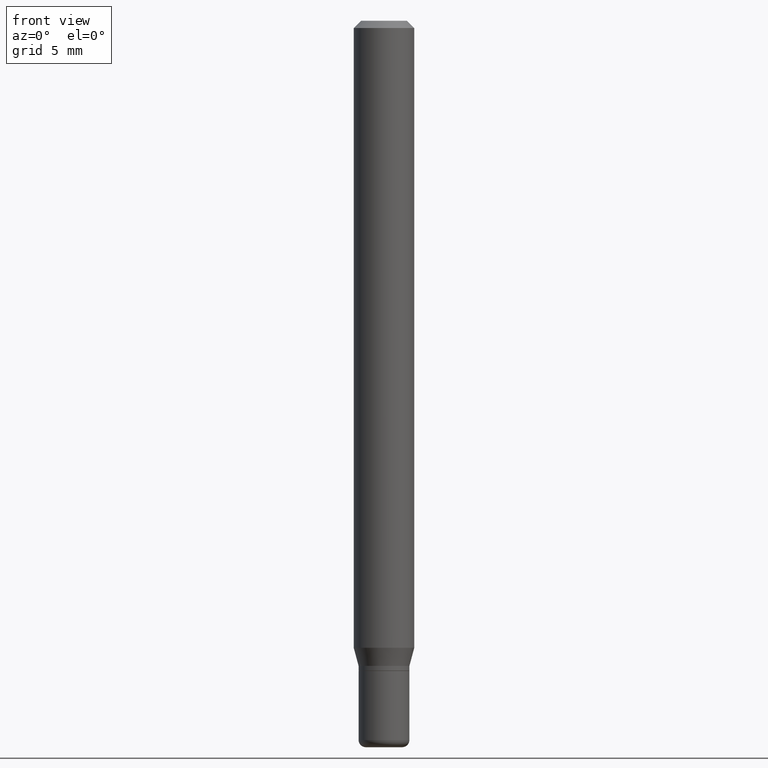
[diagram: clean part render]
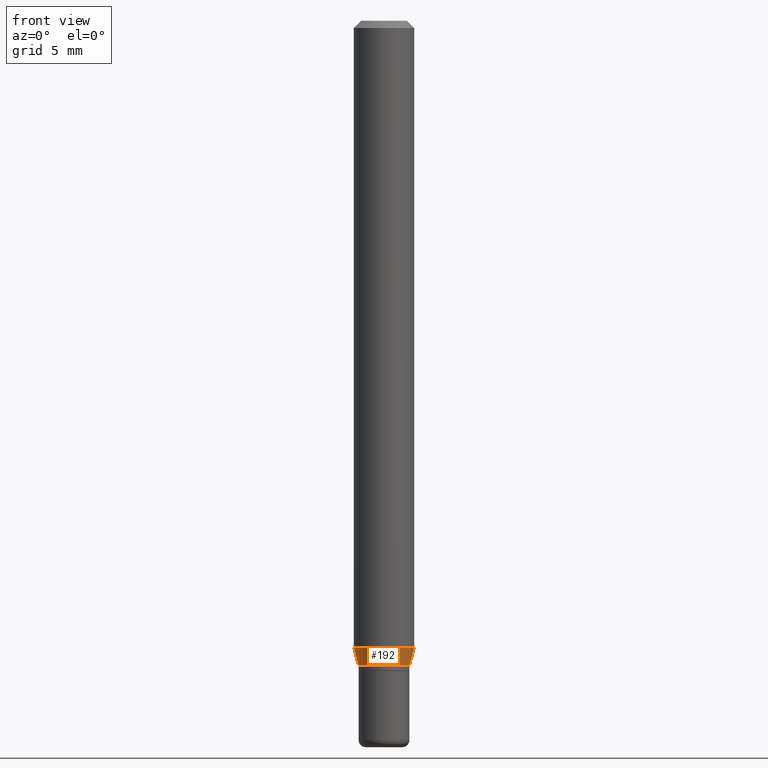
[diagram: same view with one face highlighted and labeled with its STEP entity id]
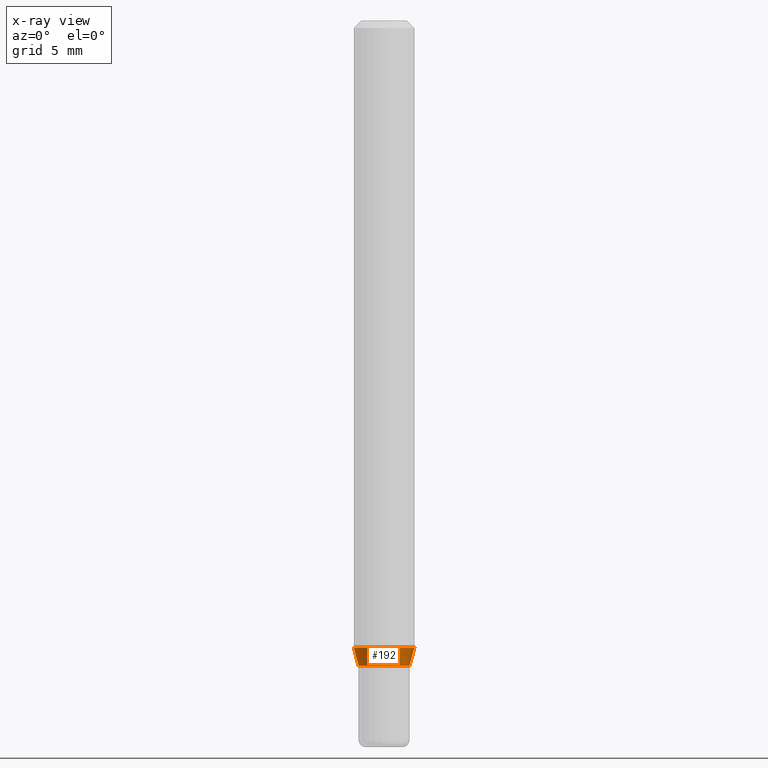
[diagram: x-ray of the same camera — body ghosted, the highlighted face saturated]
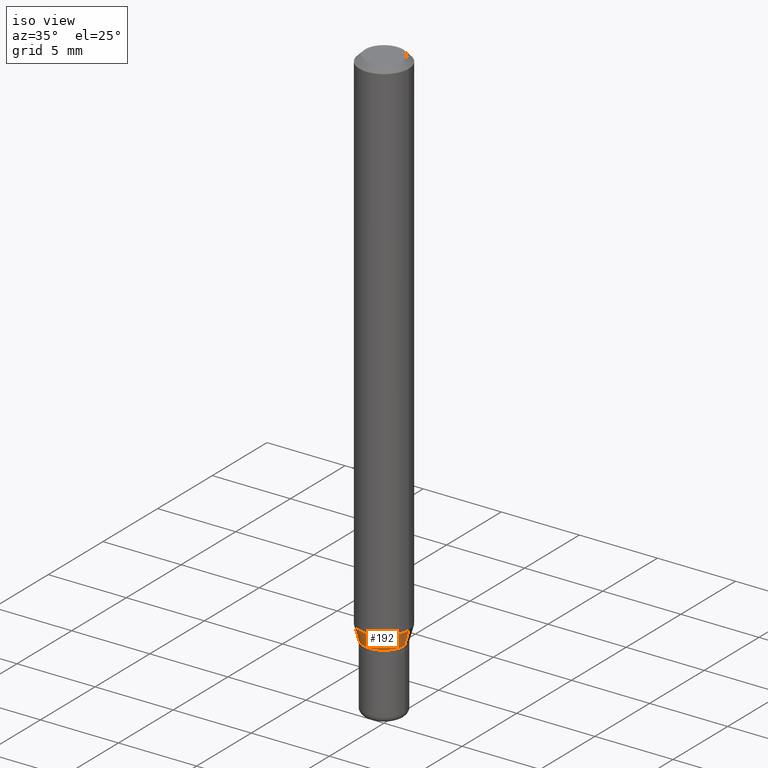
[diagram: same view with one face highlighted and labeled with its STEP entity id]
A machine part, front view. The second image highlights one B-rep face of the part: STEP entity #192.
The next image is the same camera in x-ray: the body ghosted, the highlighted face saturated — about 0% of this face is hidden behind the body in this view.
A second angle (iso view) of the same face is appended — the face is thin or edge-on in the first view.
In plain terms, the highlighted conical surface has half-angle 15 deg.
Its self-contained STEP definition (entity closure, byte-faithful):
#10 = EDGE_CURVE ( 'NONE', #423, #398, #405, .T. ) ;
#17 = ORIENTED_EDGE ( 'NONE', *, *, #307, .F. ) ;
#46 = EDGE_CURVE ( 'NONE', #109, #423, #445, .T. ) ;
#61 = DIRECTION ( 'NONE',  ( -2.445468806185136597E-29, 3.491481338843145583E-15, 1.000000000000000000 ) ) ;
#83 = VERTEX_POINT ( 'NONE', #162 ) ;
#88 = AXIS2_PLACEMENT_3D ( 'NONE', #255, #61, #453 ) ;
#92 = DIRECTION ( 'NONE',  ( -0.2588190451025213501, 5.211531920934551042E-15, 0.9659258262890682012 ) ) ;
#109 = VERTEX_POINT ( 'NONE', #411 ) ;
#122 = CARTESIAN_POINT ( 'NONE',  ( 3.166098311508524908E-29, -4.520349285836658294E-15, -1.294679491924311421 ) ) ;
#133 = EDGE_CURVE ( 'NONE', #109, #83, #488, .T. ) ;
#156 = CARTESIAN_POINT ( 'NONE',  ( 0.06250000000000000000, -4.956784453192050752E-15, -1.294679491924311421 ) ) ;
#162 = CARTESIAN_POINT ( 'NONE',  ( -0.06250000000000000000, -4.076260075986595677E-15, -1.294679491924311421 ) ) ;
#165 = AXIS2_PLACEMENT_3D ( 'NONE', #122, #441, #199 ) ;
#192 = ADVANCED_FACE ( 'NONE', ( #373 ), #310, .T. ) ;
#196 = EDGE_LOOP ( 'NONE', ( #471, #384, #408, #17 ) ) ;
#199 = DIRECTION ( 'NONE',  ( 1.000000000000000000, -6.982962677686262766E-15, 0.000000000000000000 ) ) ;
#200 = DIRECTION ( 'NONE',  ( 0.2588190451025213501, 1.565188264969621968E-15, 0.9659258262890682012 ) ) ;
#203 = DIRECTION ( 'NONE',  ( 1.000000000000000000, -6.982962677686267499E-15, 0.000000000000000000 ) ) ;
#207 = CARTESIAN_POINT ( 'NONE',  ( 3.257364449838602072E-29, -4.650653143339070101E-15, -1.332000000000000073 ) ) ;
#255 = CARTESIAN_POINT ( 'NONE',  ( 3.257364449838602072E-29, -4.650653143339070101E-15, -1.332000000000000073 ) ) ;
#289 = CARTESIAN_POINT ( 'NONE',  ( -0.05250000000000000500, -4.277618207065018355E-15, -1.332000000000000073 ) ) ;
#302 = CARTESIAN_POINT ( 'NONE',  ( 0.05250000000000000500, -5.017258683917599261E-15, -1.332000000000000073 ) ) ;
#307 = EDGE_CURVE ( 'NONE', #83, #398, #512, .T. ) ;
#310 = CONICAL_SURFACE ( 'NONE', #88, 0.05250000000000000500, 0.2617993877991500740 ) ;
#343 = AXIS2_PLACEMENT_3D ( 'NONE', #207, #483, #203 ) ;
#371 = VECTOR ( 'NONE', #200, 39.37007874015747433 ) ;
#373 = FACE_OUTER_BOUND ( 'NONE', #196, .T. ) ;
#384 = ORIENTED_EDGE ( 'NONE', *, *, #46, .T. ) ;
#398 = VERTEX_POINT ( 'NONE', #156 ) ;
#405 = LINE ( 'NONE', #412, #371 ) ;
#408 = ORIENTED_EDGE ( 'NONE', *, *, #10, .T. ) ;
#411 = CARTESIAN_POINT ( 'NONE',  ( -0.05250000000000000500, -4.176939141525806622E-15, -1.332000000000000073 ) ) ;
#412 = CARTESIAN_POINT ( 'NONE',  ( 0.05250000000000000500, -5.017258683917599261E-15, -1.332000000000000073 ) ) ;
#423 = VERTEX_POINT ( 'NONE', #302 ) ;
#429 = VECTOR ( 'NONE', #92, 39.37007874015747433 ) ;
#441 = DIRECTION ( 'NONE',  ( -2.445468806185136597E-29, 3.491481338843145583E-15, 1.000000000000000000 ) ) ;
#445 = CIRCLE ( 'NONE', #343, 0.05250000000000000500 ) ;
#453 = DIRECTION ( 'NONE',  ( 1.000000000000000000, -6.982962677686267499E-15, 0.000000000000000000 ) ) ;
#471 = ORIENTED_EDGE ( 'NONE', *, *, #133, .F. ) ;
#483 = DIRECTION ( 'NONE',  ( -2.445468806185136597E-29, 3.491481338843145583E-15, 1.000000000000000000 ) ) ;
#488 = LINE ( 'NONE', #289, #429 ) ;
#512 = CIRCLE ( 'NONE', #165, 0.06250000000000000000 ) ;